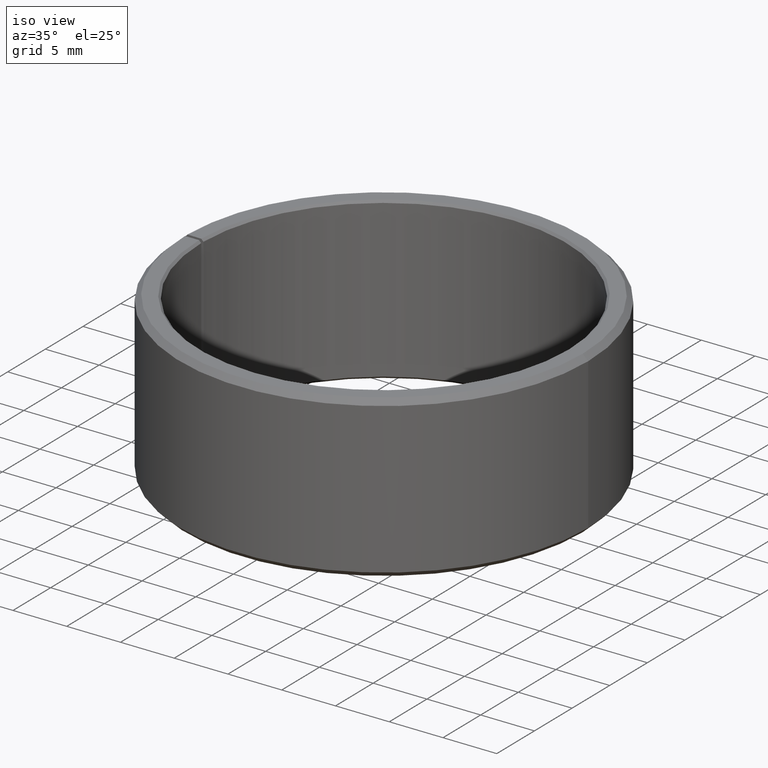
[diagram: clean part render]
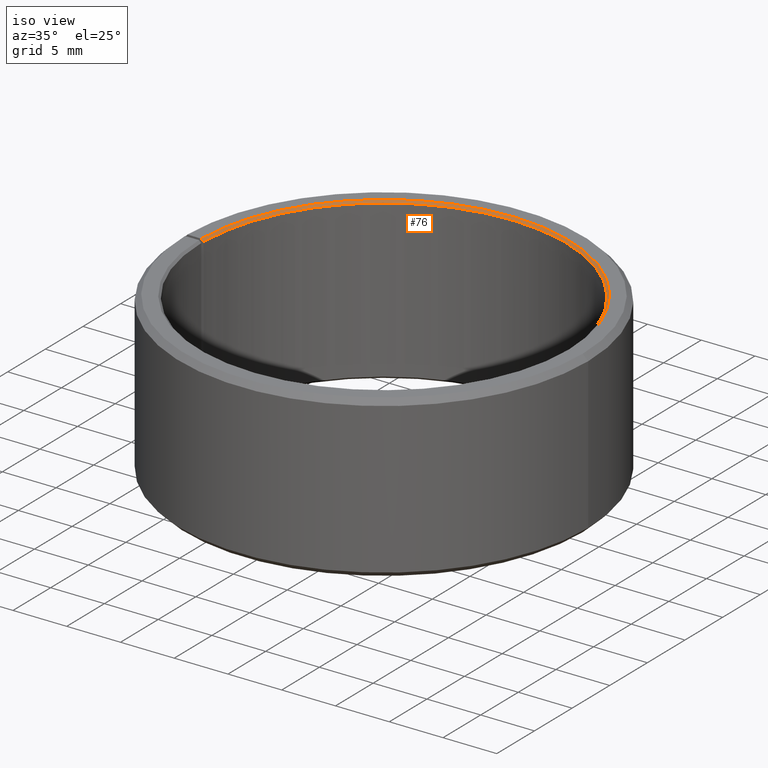
[diagram: same view with one face highlighted and labeled with its STEP entity id]
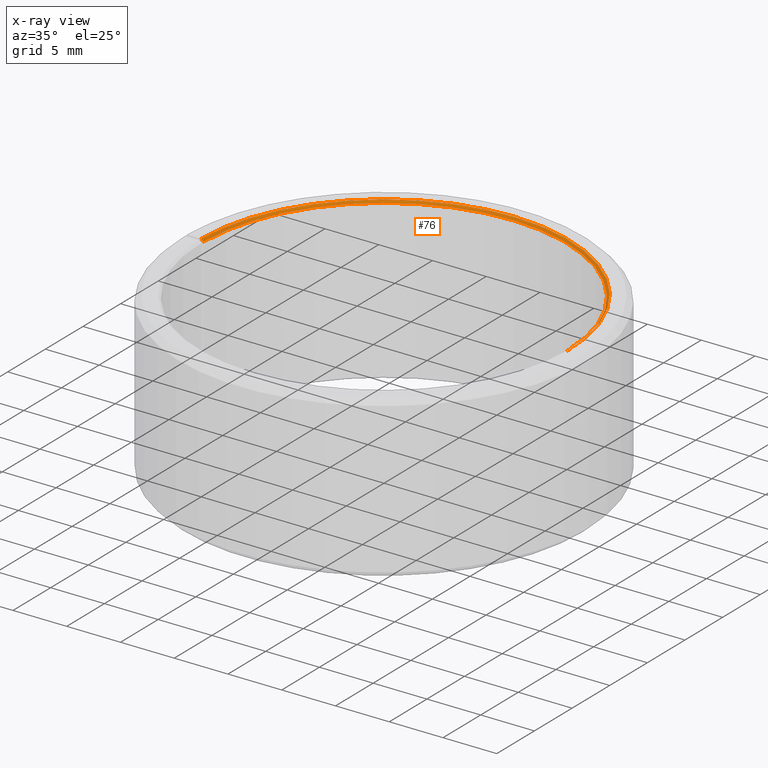
[diagram: x-ray of the same camera — body ghosted, the highlighted face saturated]
A machine part, iso view. The second image highlights one B-rep face of the part: STEP entity #76.
The next image is the same camera in x-ray: the body ghosted, the highlighted face saturated — about 0% of this face is hidden behind the body in this view.
In plain terms, the highlighted conical surface has half-angle 45 deg.
Its self-contained STEP definition (entity closure, byte-faithful):
#76=ADVANCED_FACE('',(#94),#95,.F.);
#94=FACE_OUTER_BOUND('',#126,.T.);
#95=CONICAL_SURFACE('',#127,17.1,0.785398163397448);
#126=EDGE_LOOP('',(#163,#164,#165,#166));
#127=AXIS2_PLACEMENT_3D('',#167,#168,#169);
#163=ORIENTED_EDGE('',*,*,#284,.F.);
#164=ORIENTED_EDGE('',*,*,#285,.T.);
#165=ORIENTED_EDGE('',*,*,#286,.T.);
#166=ORIENTED_EDGE('',*,*,#281,.F.);
#167=CARTESIAN_POINT('',(9.63926518603676E-015,-1.11551258030892E-014,14.9));
#168=DIRECTION('',(5.48707263966372E-016,-6.09939603923743E-016,1.0));
#169=DIRECTION('',(-1.0,-3.21624529935327E-016,5.48707263966372E-016));
#281=EDGE_CURVE('',#318,#321,#322,.T.);
#284=EDGE_CURVE('',#326,#318,#327,.T.);
#285=EDGE_CURVE('',#326,#328,#329,.T.);
#286=EDGE_CURVE('',#328,#321,#330,.T.);
#318=VERTEX_POINT('',#380);
#321=VERTEX_POINT('',#384);
#322=CIRCLE('',#385,17.0);
#326=VERTEX_POINT('',#390);
#327=LINE('',#391,#392);
#328=VERTEX_POINT('',#393);
#329=CIRCLE('',#394,17.2);
#330=LINE('',#395,#396);
#380=CARTESIAN_POINT('',(17.0,-7.70841439234671E-015,14.8));
#384=CARTESIAN_POINT('',(-16.9974108176586,0.296690909433804,14.8));
#385=AXIS2_PLACEMENT_3D('',#465,#466,#467);
#390=CARTESIAN_POINT('',(17.2,-7.79057034312734E-015,15.0));
#391=CARTESIAN_POINT('',(17.1,-7.74949236773702E-015,14.9));
#392=VECTOR('',#472,1.0);
#393=CARTESIAN_POINT('',(-17.1973803566899,0.300181390721262,15.0));
#394=AXIS2_PLACEMENT_3D('',#473,#474,#475);
#395=CARTESIAN_POINT('',(-17.1973803566899,0.30018139072126,15.0));
#396=VECTOR('',#476,10.0);
#465=CARTESIAN_POINT('',(9.58439445964012E-015,-1.11002550766925E-014,14.8));
#466=DIRECTION('',(5.48707263966372E-016,-6.09939603923743E-016,1.0));
#467=DIRECTION('',(-1.0,-3.21624529935328E-016,5.48707263966372E-016));
#472=DIRECTION('',(-0.707106781186548,2.90465149559059E-016,-0.707106781186547));
#473=CARTESIAN_POINT('',(9.69413591243339E-015,-1.12099965294858E-014,15.0));
#474=DIRECTION('',(5.48707263966372E-016,-6.09939603923743E-016,1.0));
#475=DIRECTION('',(-1.0,-3.21624529935328E-016,5.48707263966372E-016));
#476=DIRECTION('',(0.706999085398824,-0.0123407149398263,-0.707106781186548));